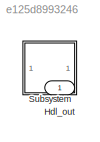
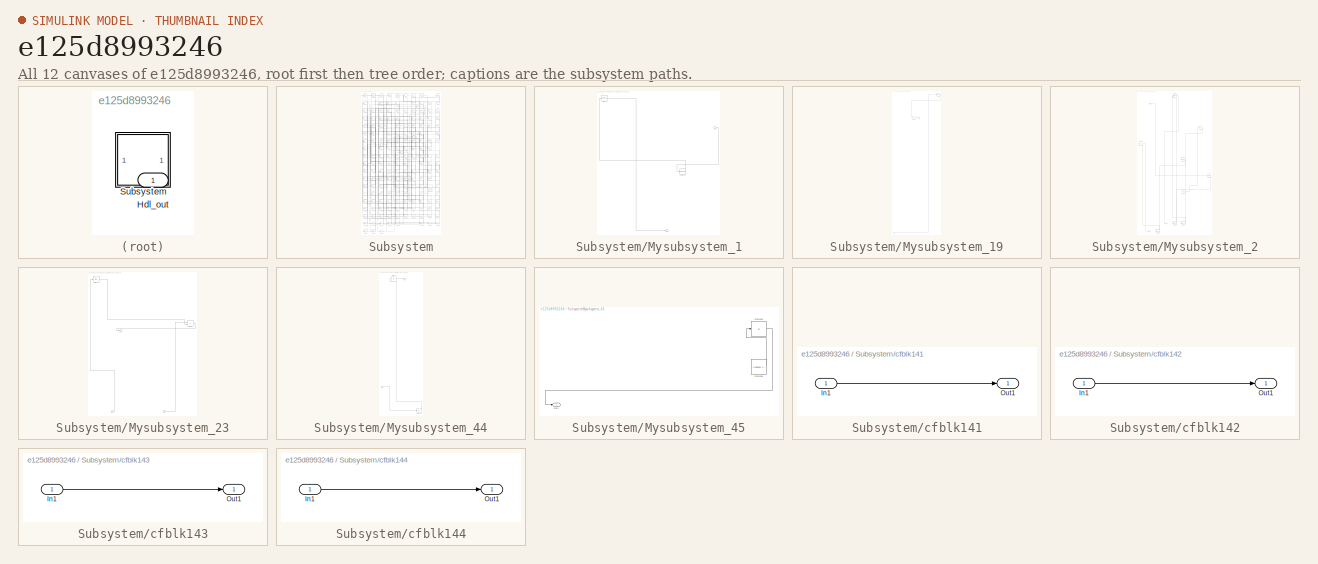
[diagram: thumbnail index - all 12 canvases of the model, root first then tree order]
MODEL slx_e125d8993246
KIND model
CONFIG AbsTol = auto
CONFIG EnableMultiTasking = off
CONFIG FixedStep = auto
CONFIG MaxStep = auto
CONFIG MinStep = auto
CONFIG RelTol = 1e-3
CONFIG SampleTimeConstraint = Unconstrained
CONFIG SolverName = VariableStepAuto
CONFIG StartTime = 0.0
CONFIG StopTime = 10.0
BLOCK [Outport] Hdl_out
  OutDataTypeStr = uint8
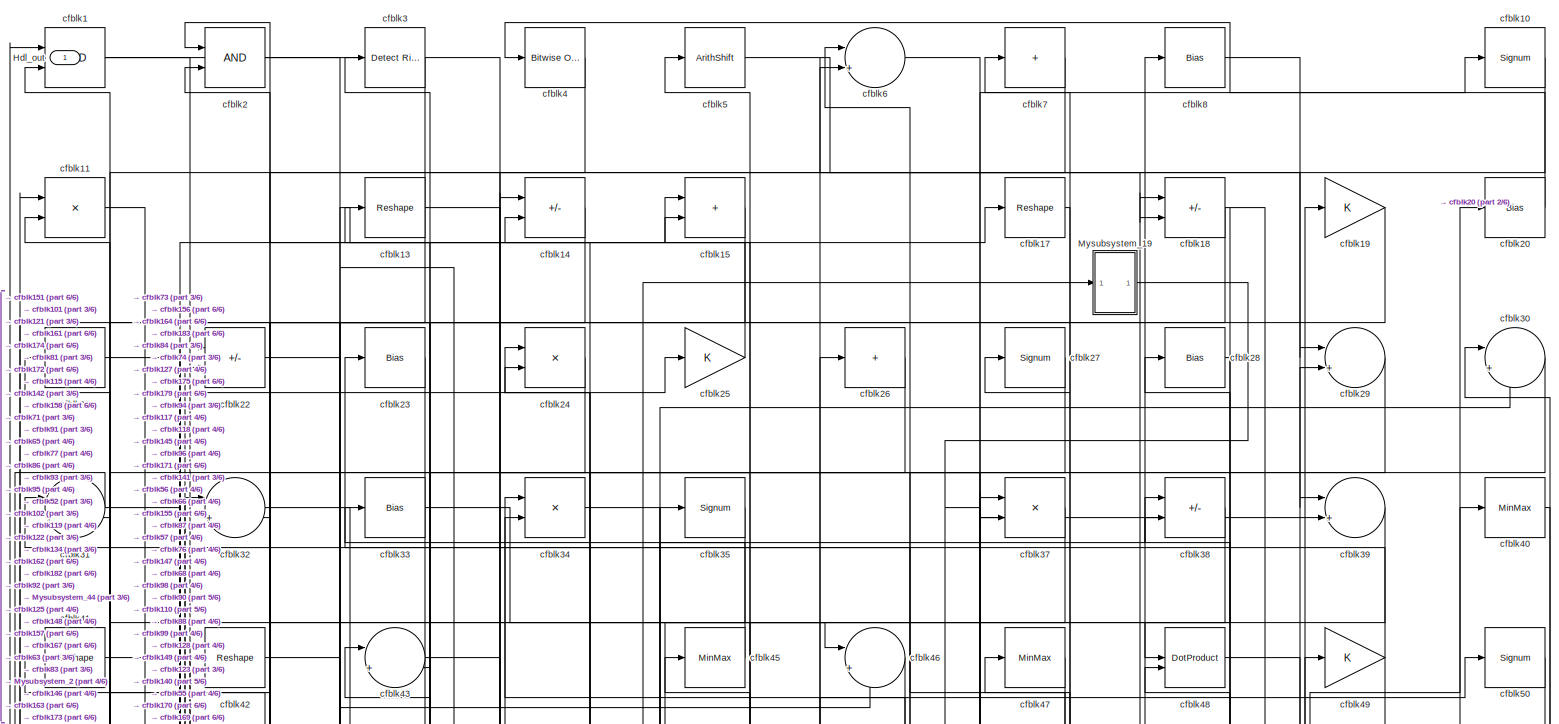
[diagram: Subsystem - part 1/6, full width, top band]
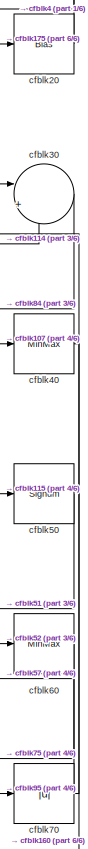
[diagram: Subsystem - part 2/6, top right region]
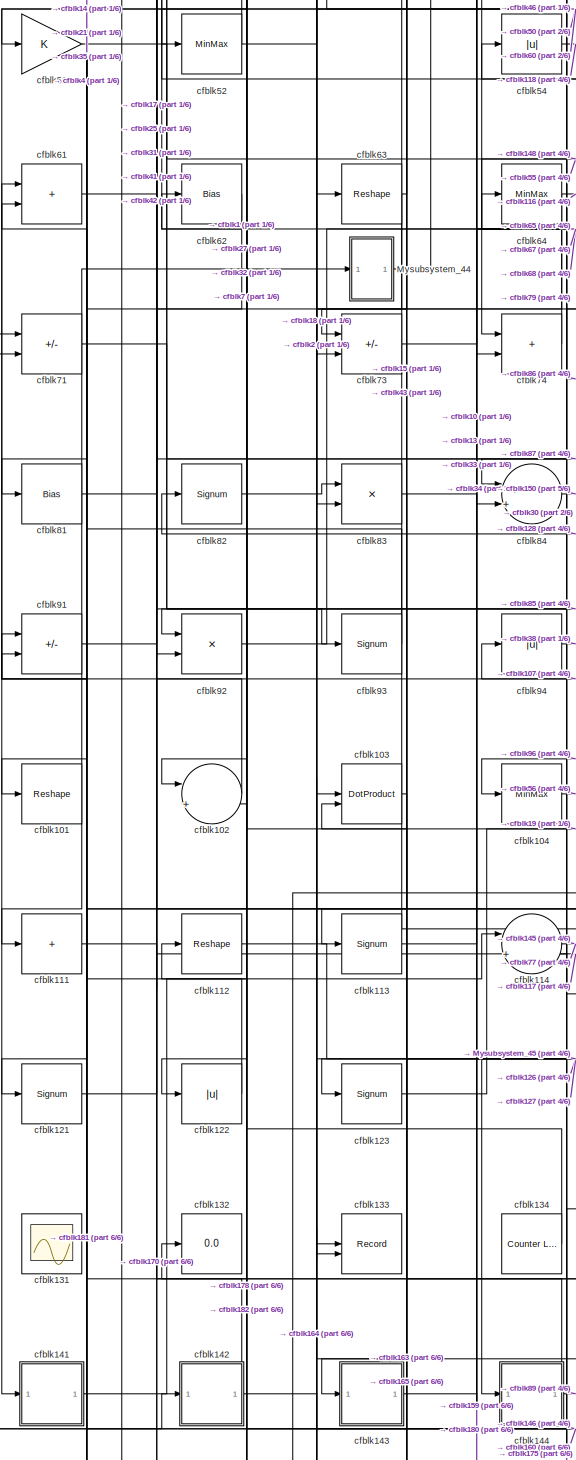
[diagram: Subsystem - part 3/6, middle left region]
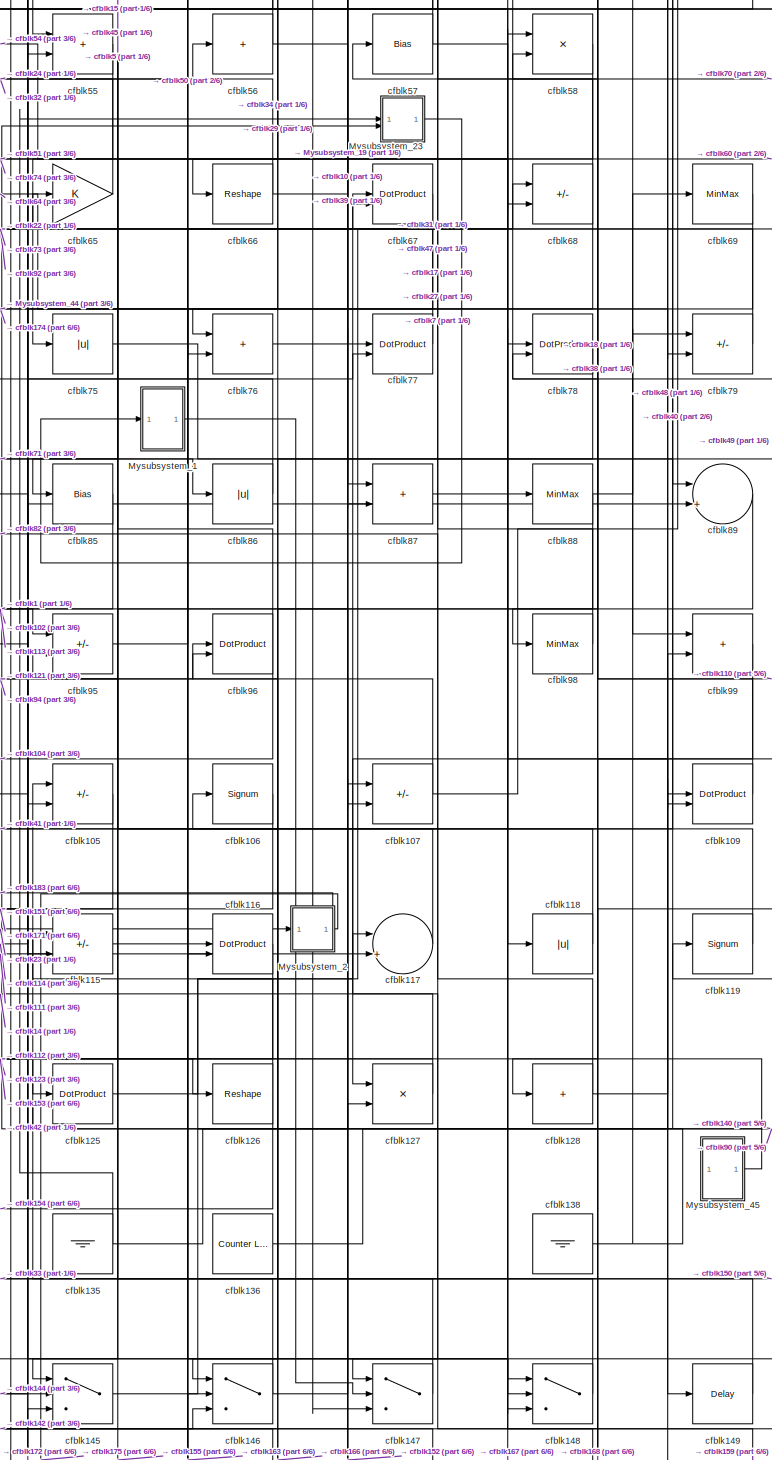
[diagram: Subsystem - part 4/6, central region]
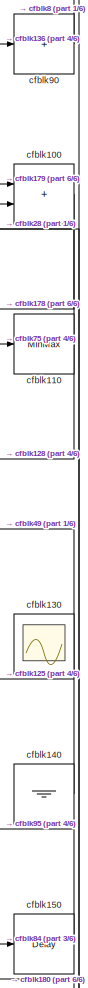
[diagram: Subsystem - part 5/6, middle right region]
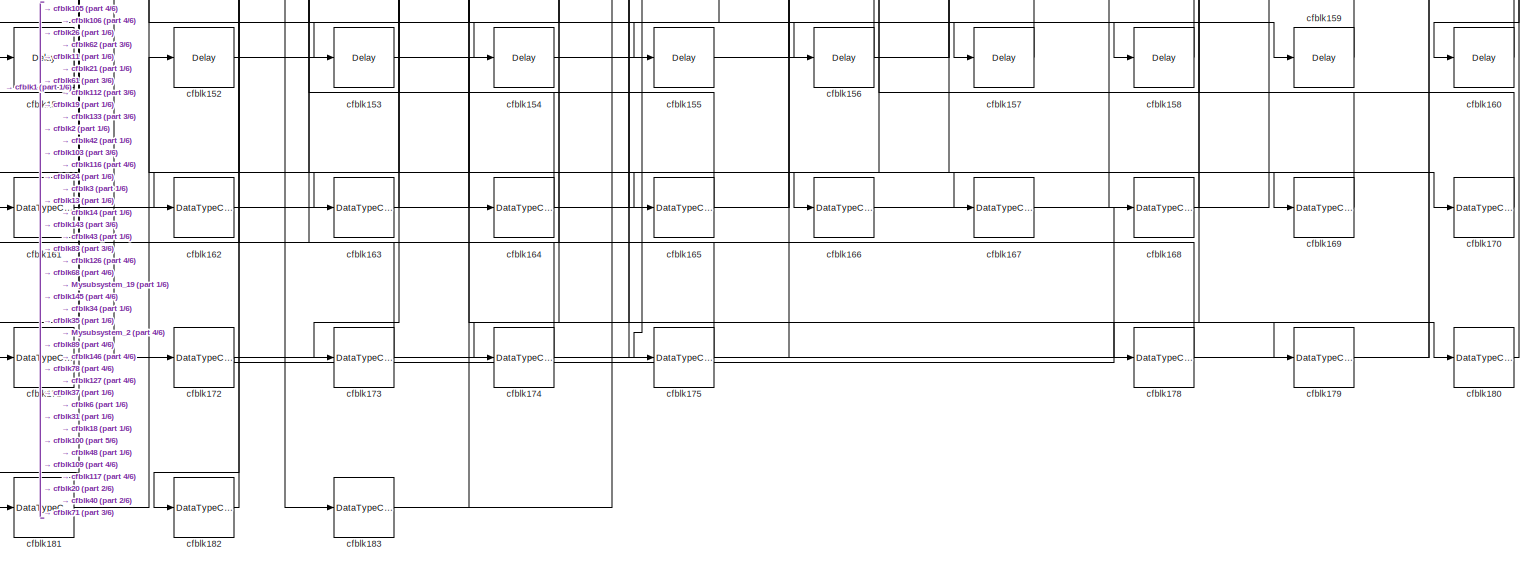
[diagram: Subsystem - part 6/6, full width, bottom band]
BLOCK [SubSystem] Subsystem
BLOCK [Outport] Subsystem/Hdl_out
  OutDataTypeStr = uint8
BLOCK [SubSystem] Subsystem/Mysubsystem_1
  RTWFcnName = Mysubsystem_1
  RTWFcnNameOpts = User specified
  RTWFileNameOpts = Use function name
  RTWSystemCode = Reusable function
  TreatAsAtomicUnit = on
BLOCK [Inport] Subsystem/Mysubsystem_1/In1
BLOCK [Outport] Subsystem/Mysubsystem_1/Out1
BLOCK [Reshape] Subsystem/Mysubsystem_1/cfblk108
BLOCK [Signum] Subsystem/Mysubsystem_1/cfblk53
BLOCK [SubSystem] Subsystem/Mysubsystem_19
  RTWFcnName = Mysubsystem_19
  RTWFcnNameOpts = User specified
  RTWFileNameOpts = Use function name
  RTWSystemCode = Reusable function
  TreatAsAtomicUnit = on
BLOCK [Inport] Subsystem/Mysubsystem_19/In1
BLOCK [Outport] Subsystem/Mysubsystem_19/Out1
BLOCK [Sum] Subsystem/Mysubsystem_19/cfblk36
  IconShape = rectangular
  Inputs = +
BLOCK [Reshape] Subsystem/Mysubsystem_19/cfblk9
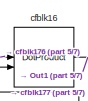
[diagram: Subsystem/Mysubsystem_2 - part 1/7, top center region]
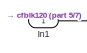
[diagram: Subsystem/Mysubsystem_2 - part 2/7, top left region]
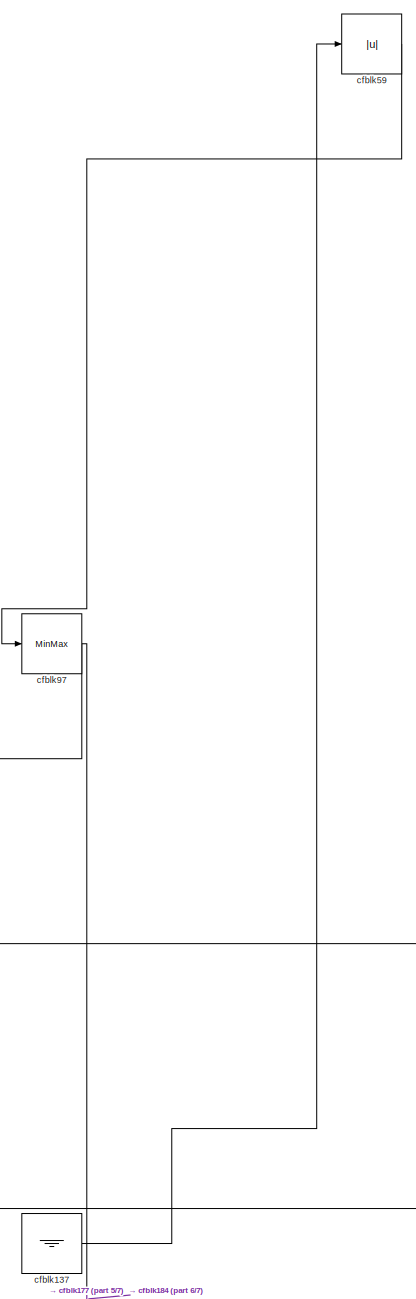
[diagram: Subsystem/Mysubsystem_2 - part 3/7, middle right region]
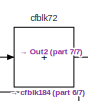
[diagram: Subsystem/Mysubsystem_2 - part 4/7, middle left region]
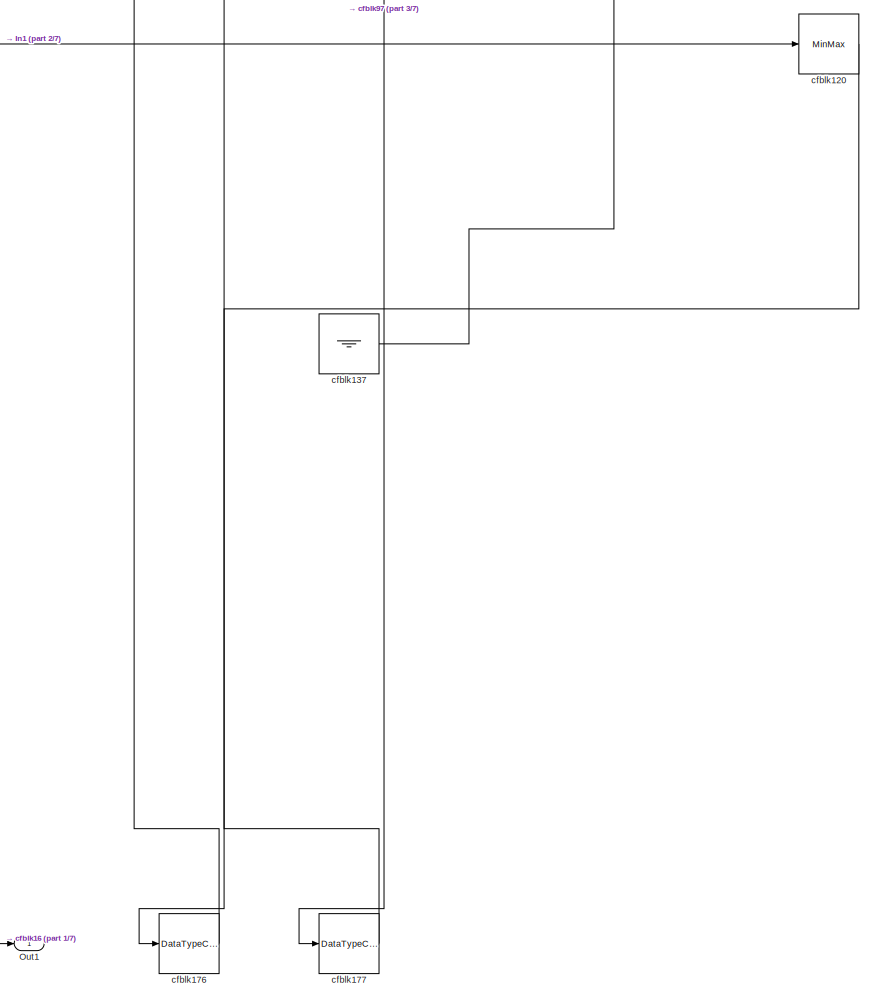
[diagram: Subsystem/Mysubsystem_2 - part 5/7, bottom right region]
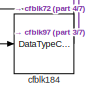
[diagram: Subsystem/Mysubsystem_2 - part 6/7, bottom left region]
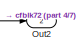
[diagram: Subsystem/Mysubsystem_2 - part 7/7, bottom left region]
BLOCK [SubSystem] Subsystem/Mysubsystem_2
  RTWFcnName = Mysubsystem_2
  RTWFcnNameOpts = User specified
  RTWFileNameOpts = Use function name
  RTWSystemCode = Reusable function
  TreatAsAtomicUnit = on
BLOCK [Inport] Subsystem/Mysubsystem_2/In1
BLOCK [Outport] Subsystem/Mysubsystem_2/Out1
BLOCK [Outport] Subsystem/Mysubsystem_2/Out2
  Port = 2
BLOCK [MinMax] Subsystem/Mysubsystem_2/cfblk120
BLOCK [Ground] Subsystem/Mysubsystem_2/cfblk137
BLOCK [DotProduct] Subsystem/Mysubsystem_2/cfblk16
  OutDataTypeStr = Inherit: Inherit via internal rule
BLOCK [DataTypeConversion] Subsystem/Mysubsystem_2/cfblk176
  OutDataTypeStr = uint8
  RndMeth = Floor
  SaturateOnIntegerOverflow = off
BLOCK [DataTypeConversion] Subsystem/Mysubsystem_2/cfblk177
  OutDataTypeStr = uint8
  RndMeth = Floor
  SaturateOnIntegerOverflow = off
BLOCK [DataTypeConversion] Subsystem/Mysubsystem_2/cfblk184
  OutDataTypeStr = uint8
  RndMeth = Floor
  SaturateOnIntegerOverflow = off
BLOCK [Abs] Subsystem/Mysubsystem_2/cfblk59
  SaturateOnIntegerOverflow = off
BLOCK [Sum] Subsystem/Mysubsystem_2/cfblk72
  IconShape = rectangular
  Inputs = +
BLOCK [MinMax] Subsystem/Mysubsystem_2/cfblk97
BLOCK [SubSystem] Subsystem/Mysubsystem_23
  RTWFcnName = Mysubsystem_23
  RTWFcnNameOpts = User specified
  RTWFileNameOpts = Use function name
  RTWSystemCode = Reusable function
  TreatAsAtomicUnit = on
BLOCK [Inport] Subsystem/Mysubsystem_23/In1
BLOCK [Inport] Subsystem/Mysubsystem_23/In2
  Port = 2
BLOCK [Outport] Subsystem/Mysubsystem_23/Out1
BLOCK [Bias] Subsystem/Mysubsystem_23/cfblk44
  Bias = 0.0
  SaturateOnIntegerOverflow = off
BLOCK [Sum] Subsystem/Mysubsystem_23/cfblk80
  IconShape = rectangular
  Inputs = +-
BLOCK [SubSystem] Subsystem/Mysubsystem_44
  RTWFcnName = Mysubsystem_44
  RTWFcnNameOpts = User specified
  RTWFileNameOpts = Use function name
  RTWSystemCode = Reusable function
  TreatAsAtomicUnit = on
BLOCK [Inport] Subsystem/Mysubsystem_44/In1
BLOCK [Outport] Subsystem/Mysubsystem_44/Out1
BLOCK [Abs] Subsystem/Mysubsystem_44/cfblk12
  SaturateOnIntegerOverflow = off
BLOCK [Abs] Subsystem/Mysubsystem_44/cfblk124
  SaturateOnIntegerOverflow = off
BLOCK [SubSystem] Subsystem/Mysubsystem_45
  RTWFcnName = Mysubsystem_45
  RTWFcnNameOpts = User specified
  RTWFileNameOpts = Use function name
  RTWSystemCode = Reusable function
  TreatAsAtomicUnit = on
BLOCK [Outport] Subsystem/Mysubsystem_45/Out1
BLOCK [Sum] Subsystem/Mysubsystem_45/cfblk129
  IconShape = rectangular
  Inputs = +
BLOCK [Reference] Subsystem/Mysubsystem_45/cfblk139  REF=hdlsllib/Sources/Counter
Limited
  SourceBlock = hdlsllib/Sources/Counter\nLimited
  SourceType = Counter Limited
BLOCK [Logic] Subsystem/cfblk1
  AllPortsSameDT = off
  OutDataTypeStr = boolean
BLOCK [Signum] Subsystem/cfblk10
BLOCK [Sum] Subsystem/cfblk100
  IconShape = rectangular
  OutDataTypeStr = uint8
BLOCK [Reshape] Subsystem/cfblk101
BLOCK [Sum] Subsystem/cfblk102
  Inputs = |++
  OutDataTypeStr = uint8
BLOCK [DotProduct] Subsystem/cfblk103
  OutDataTypeStr = uint8
BLOCK [MinMax] Subsystem/cfblk104
  OutDataTypeStr = uint8
BLOCK [Sum] Subsystem/cfblk105
  IconShape = rectangular
  Inputs = +-
  OutDataTypeStr = uint8
BLOCK [Signum] Subsystem/cfblk106
BLOCK [Sum] Subsystem/cfblk107
  IconShape = rectangular
  Inputs = +-
  OutDataTypeStr = uint8
BLOCK [DotProduct] Subsystem/cfblk109
  OutDataTypeStr = uint8
BLOCK [Product] Subsystem/cfblk11
  Inputs = */
  OutDataTypeStr = uint8
  RndMeth = Zero
  SaturateOnIntegerOverflow = on
BLOCK [MinMax] Subsystem/cfblk110
  OutDataTypeStr = uint8
BLOCK [Sum] Subsystem/cfblk111
  IconShape = rectangular
  Inputs = +
  OutDataTypeStr = uint8
BLOCK [Reshape] Subsystem/cfblk112
BLOCK [Signum] Subsystem/cfblk113
BLOCK [Sum] Subsystem/cfblk114
  Inputs = |++
  OutDataTypeStr = uint8
BLOCK [Sum] Subsystem/cfblk115
  IconShape = rectangular
  Inputs = +-
  OutDataTypeStr = uint8
BLOCK [DotProduct] Subsystem/cfblk116
  OutDataTypeStr = uint8
BLOCK [Sum] Subsystem/cfblk117
  Inputs = |++
  OutDataTypeStr = uint8
BLOCK [Abs] Subsystem/cfblk118
  OutDataTypeStr = uint8
  SaturateOnIntegerOverflow = off
BLOCK [Signum] Subsystem/cfblk119
BLOCK [Signum] Subsystem/cfblk121
BLOCK [Abs] Subsystem/cfblk122
  OutDataTypeStr = uint8
  SaturateOnIntegerOverflow = off
BLOCK [Signum] Subsystem/cfblk123
BLOCK [DotProduct] Subsystem/cfblk125
  OutDataTypeStr = uint8
BLOCK [Reshape] Subsystem/cfblk126
BLOCK [Product] Subsystem/cfblk127
  Inputs = */
  OutDataTypeStr = uint8
  RndMeth = Zero
  SaturateOnIntegerOverflow = on
BLOCK [Sum] Subsystem/cfblk128
  IconShape = rectangular
  Inputs = +
  OutDataTypeStr = uint8
BLOCK [Reshape] Subsystem/cfblk13
BLOCK [Scope] Subsystem/cfblk130
  Floating = on
  NumInputPorts = 1
  ScopeSpecificationString = Simulink.scopes.TimeScopeBlockCfg('CurrentConfiguration', extmgr.ConfigurationSet(extmgr.Configuration('Core','General UI',true,'FigureColor',[0.156862745098039 0.156862745098039 0.156862745098039]),extmgr.Configuration('Core','Source UI',true),extmgr.Configuration('Sources','WiredSimulink',true,'DataLoggingVariableName','ScopeData1','DataLoggingSaveFormat','StructureWithTime','DataLoggingLimitDat...<+2713ch>
BLOCK [Scope] Subsystem/cfblk131
  Floating = on
  NumInputPorts = 1
  ScopeSpecificationString = Simulink.scopes.TimeScopeBlockCfg('CurrentConfiguration', extmgr.ConfigurationSet(extmgr.Configuration('Core','General UI',true,'FigureColor',[0.156862745098039 0.156862745098039 0.156862745098039]),extmgr.Configuration('Core','Source UI',true),extmgr.Configuration('Sources','WiredSimulink',true,'DataLoggingSaveFormat','StructureWithTime','DataLoggingLimitDataPoints',true,'DataLoggingDecimation','...<+2674ch>
BLOCK [Display] Subsystem/cfblk132
  Decimation = 1
BLOCK [Record] Subsystem/cfblk133
  CompatibilityTag = XY
  FileSettingsInternal = {"entries":[{"content":{"excelSettings":{"content":{},"type":"Streamout.ExcelSettings"}},"type":"Streamout.FileSettingStorage","uuid":""}],"packageUris":["http:\/\/schema.mathworks.com\/mf0\/streamout_blocks\/R2020a"],"version":"1.0"}
  Layout = [1 1]
  SignalsInternal = {"entries":[{"content":{"signals":[{"content":{"blockPath":[],"dimensions":[1],"domain":"","lineColor":"#a2142f","plots":[1],"port":1,"signalID":38384,"signalName":"cfblk175"},"type":"RecordBlkView.Signal","uuid":""},{"content":{"blockPath":[],"dimensions":[1],"domain":"","lineColor":"#139fff","plots":[1],"port":2,"signalID":38387,"signalName":"cfblk63"},"type":"RecordBlkView.Signal","uuid":""}]},...<+143ch>
  VisualizationBindings = {"xyplotplugin":{"info":[{"series":[{"bindingParametersList":[{"parameter":"X-Axis","signalID":38384,"signalName":"cfblk175"},{"parameter":"Y-Axis","signalID":38387,"signalName":"cfblk63"}],"seriesID":10141}],"subplotID":1}]}}
  st = -1
BLOCK [Reference] Subsystem/cfblk134  REF=hdlsllib/Sources/Counter
Limited
  SourceBlock = hdlsllib/Sources/Counter\nLimited
  SourceType = Counter Limited
BLOCK [Ground] Subsystem/cfblk135
BLOCK [Reference] Subsystem/cfblk136  REF=hdlsllib/Sources/Counter
Limited
  SourceBlock = hdlsllib/Sources/Counter\nLimited
  SourceType = Counter Limited
BLOCK [Ground] Subsystem/cfblk138
BLOCK [Sum] Subsystem/cfblk14
  IconShape = rectangular
  Inputs = +-
  OutDataTypeStr = uint8
BLOCK [Ground] Subsystem/cfblk140
BLOCK [SubSystem] Subsystem/cfblk141
  LibrarySourceBlock = hdlsllib/Ports &\nSubsystems/Subsystem
BLOCK [Inport] Subsystem/cfblk141/In1
BLOCK [Outport] Subsystem/cfblk141/Out1
BLOCK [SubSystem] Subsystem/cfblk142
  LibrarySourceBlock = hdlsllib/Ports &\nSubsystems/Subsystem
BLOCK [Inport] Subsystem/cfblk142/In1
BLOCK [Outport] Subsystem/cfblk142/Out1
BLOCK [SubSystem] Subsystem/cfblk143
  LibrarySourceBlock = hdlsllib/Ports &\nSubsystems/Subsystem
BLOCK [Inport] Subsystem/cfblk143/In1
BLOCK [Outport] Subsystem/cfblk143/Out1
BLOCK [SubSystem] Subsystem/cfblk144
  LibrarySourceBlock = hdlsllib/Ports &\nSubsystems/Subsystem
BLOCK [Inport] Subsystem/cfblk144/In1
BLOCK [Outport] Subsystem/cfblk144/Out1
BLOCK [Switch] Subsystem/cfblk145
  InputSameDT = off
  OutDataTypeStr = uint8
  SaturateOnIntegerOverflow = off
BLOCK [Switch] Subsystem/cfblk146
  InputSameDT = off
  OutDataTypeStr = uint8
  SaturateOnIntegerOverflow = off
BLOCK [Switch] Subsystem/cfblk147
  InputSameDT = off
  OutDataTypeStr = uint8
  SaturateOnIntegerOverflow = off
BLOCK [Switch] Subsystem/cfblk148
  InputSameDT = off
  OutDataTypeStr = uint8
  SaturateOnIntegerOverflow = off
BLOCK [Delay] Subsystem/cfblk149
  InputPortMap = u0
  SampleTime = 1
BLOCK [Sum] Subsystem/cfblk15
  IconShape = rectangular
  OutDataTypeStr = uint8
BLOCK [Delay] Subsystem/cfblk150
  InputPortMap = u0
  SampleTime = 1
BLOCK [Delay] Subsystem/cfblk151
  InputPortMap = u0
  SampleTime = 1
BLOCK [Delay] Subsystem/cfblk152
  InputPortMap = u0
  SampleTime = 1
BLOCK [Delay] Subsystem/cfblk153
  InputPortMap = u0
  SampleTime = 1
BLOCK [Delay] Subsystem/cfblk154
  InputPortMap = u0
  SampleTime = 1
BLOCK [Delay] Subsystem/cfblk155
  InputPortMap = u0
  SampleTime = 1
BLOCK [Delay] Subsystem/cfblk156
  InputPortMap = u0
  SampleTime = 1
BLOCK [Delay] Subsystem/cfblk157
  InputPortMap = u0
  SampleTime = 1
BLOCK [Delay] Subsystem/cfblk158
  InputPortMap = u0
  SampleTime = 1
BLOCK [Delay] Subsystem/cfblk159
  InputPortMap = u0
  SampleTime = 1
BLOCK [Delay] Subsystem/cfblk160
  InputPortMap = u0
  SampleTime = 1
BLOCK [DataTypeConversion] Subsystem/cfblk161
  OutDataTypeStr = uint8
  RndMeth = Floor
  SaturateOnIntegerOverflow = off
BLOCK [DataTypeConversion] Subsystem/cfblk162
  OutDataTypeStr = uint8
  RndMeth = Floor
  SaturateOnIntegerOverflow = off
BLOCK [DataTypeConversion] Subsystem/cfblk163
  OutDataTypeStr = uint8
  RndMeth = Floor
  SaturateOnIntegerOverflow = off
BLOCK [DataTypeConversion] Subsystem/cfblk164
  OutDataTypeStr = uint8
  RndMeth = Floor
  SaturateOnIntegerOverflow = off
BLOCK [DataTypeConversion] Subsystem/cfblk165
  OutDataTypeStr = uint8
  RndMeth = Floor
  SaturateOnIntegerOverflow = off
BLOCK [DataTypeConversion] Subsystem/cfblk166
  OutDataTypeStr = uint8
  RndMeth = Floor
  SaturateOnIntegerOverflow = off
BLOCK [DataTypeConversion] Subsystem/cfblk167
  OutDataTypeStr = uint8
  RndMeth = Floor
  SaturateOnIntegerOverflow = off
BLOCK [DataTypeConversion] Subsystem/cfblk168
  OutDataTypeStr = uint8
  RndMeth = Floor
  SaturateOnIntegerOverflow = off
BLOCK [DataTypeConversion] Subsystem/cfblk169
  OutDataTypeStr = uint8
  RndMeth = Floor
  SaturateOnIntegerOverflow = off
BLOCK [Reshape] Subsystem/cfblk17
BLOCK [DataTypeConversion] Subsystem/cfblk170
  OutDataTypeStr = uint8
  RndMeth = Floor
  SaturateOnIntegerOverflow = off
BLOCK [DataTypeConversion] Subsystem/cfblk171
  OutDataTypeStr = uint8
  RndMeth = Floor
  SaturateOnIntegerOverflow = off
BLOCK [DataTypeConversion] Subsystem/cfblk172
  OutDataTypeStr = uint8
  RndMeth = Floor
  SaturateOnIntegerOverflow = off
BLOCK [DataTypeConversion] Subsystem/cfblk173
  OutDataTypeStr = uint8
  RndMeth = Floor
  SaturateOnIntegerOverflow = off
BLOCK [DataTypeConversion] Subsystem/cfblk174
  OutDataTypeStr = uint8
  RndMeth = Floor
  SaturateOnIntegerOverflow = off
BLOCK [DataTypeConversion] Subsystem/cfblk175
  OutDataTypeStr = uint8
  RndMeth = Floor
  SaturateOnIntegerOverflow = off
BLOCK [DataTypeConversion] Subsystem/cfblk178
  OutDataTypeStr = uint8
  RndMeth = Floor
  SaturateOnIntegerOverflow = off
BLOCK [DataTypeConversion] Subsystem/cfblk179
  OutDataTypeStr = uint8
  RndMeth = Floor
  SaturateOnIntegerOverflow = off
BLOCK [Sum] Subsystem/cfblk18
  IconShape = rectangular
  Inputs = +-
  OutDataTypeStr = uint8
BLOCK [DataTypeConversion] Subsystem/cfblk180
  OutDataTypeStr = uint8
  RndMeth = Floor
  SaturateOnIntegerOverflow = off
BLOCK [DataTypeConversion] Subsystem/cfblk181
  OutDataTypeStr = uint8
  RndMeth = Floor
  SaturateOnIntegerOverflow = off
BLOCK [DataTypeConversion] Subsystem/cfblk182
  OutDataTypeStr = uint8
  RndMeth = Floor
  SaturateOnIntegerOverflow = off
BLOCK [DataTypeConversion] Subsystem/cfblk183
  OutDataTypeStr = uint8
  RndMeth = Floor
  SaturateOnIntegerOverflow = off
BLOCK [Gain] Subsystem/cfblk19
  OutDataTypeStr = uint8
BLOCK [Logic] Subsystem/cfblk2
  AllPortsSameDT = off
  OutDataTypeStr = boolean
BLOCK [Bias] Subsystem/cfblk20
  Bias = 0.0
  SaturateOnIntegerOverflow = off
BLOCK [Sum] Subsystem/cfblk21
  IconShape = rectangular
  Inputs = +
  OutDataTypeStr = uint8
BLOCK [Sum] Subsystem/cfblk22
  IconShape = rectangular
  Inputs = +-
  OutDataTypeStr = uint8
BLOCK [Bias] Subsystem/cfblk23
  Bias = 0.0
  SaturateOnIntegerOverflow = off
BLOCK [Product] Subsystem/cfblk24
  Inputs = */
  OutDataTypeStr = uint8
  RndMeth = Zero
  SaturateOnIntegerOverflow = on
BLOCK [Gain] Subsystem/cfblk25
  OutDataTypeStr = uint8
BLOCK [Sum] Subsystem/cfblk26
  IconShape = rectangular
  Inputs = +
  OutDataTypeStr = uint8
BLOCK [Signum] Subsystem/cfblk27
BLOCK [Bias] Subsystem/cfblk28
  Bias = 0.0
  SaturateOnIntegerOverflow = off
BLOCK [Sum] Subsystem/cfblk29
  Inputs = |++
  OutDataTypeStr = uint8
BLOCK [Reference] Subsystem/cfblk3  REF=hdlsllib/Logic and Bit
Operations/Detect Rise
Positive
  SourceBlock = hdlsllib/Logic and Bit\nOperations/Detect Rise\nPositive
  SourceType = Detect Rise Positive
BLOCK [Sum] Subsystem/cfblk30
  Inputs = |++
  OutDataTypeStr = uint8
BLOCK [Sum] Subsystem/cfblk31
  Inputs = |++
  OutDataTypeStr = uint8
BLOCK [Sum] Subsystem/cfblk32
  Inputs = |++
  OutDataTypeStr = uint8
BLOCK [Bias] Subsystem/cfblk33
  Bias = 0.0
  SaturateOnIntegerOverflow = off
BLOCK [Product] Subsystem/cfblk34
  Inputs = */
  OutDataTypeStr = uint8
  RndMeth = Zero
  SaturateOnIntegerOverflow = on
BLOCK [Signum] Subsystem/cfblk35
BLOCK [Product] Subsystem/cfblk37
  Inputs = */
  OutDataTypeStr = uint8
  RndMeth = Zero
  SaturateOnIntegerOverflow = on
BLOCK [Sum] Subsystem/cfblk38
  IconShape = rectangular
  Inputs = +-
  OutDataTypeStr = uint8
BLOCK [Sum] Subsystem/cfblk39
  Inputs = |++
  OutDataTypeStr = uint8
BLOCK [Reference] Subsystem/cfblk4  REF=simulink/Logic and Bit
Operations/Bitwise
Operator
  LibrarySourceBlock = hdlsllib/Logic and Bit\nOperations/Bitwise\nOperator
  SourceBlock = simulink/Logic and Bit\nOperations/Bitwise\nOperator
  SourceType = Bitwise Operator
BLOCK [MinMax] Subsystem/cfblk40
  OutDataTypeStr = uint8
BLOCK [Reshape] Subsystem/cfblk41
BLOCK [Reshape] Subsystem/cfblk42
BLOCK [Sum] Subsystem/cfblk43
  Inputs = |++
  OutDataTypeStr = uint8
BLOCK [MinMax] Subsystem/cfblk45
  OutDataTypeStr = uint8
BLOCK [Sum] Subsystem/cfblk46
  Inputs = |++
  OutDataTypeStr = uint8
BLOCK [MinMax] Subsystem/cfblk47
  OutDataTypeStr = uint8
BLOCK [DotProduct] Subsystem/cfblk48
  OutDataTypeStr = uint8
BLOCK [Gain] Subsystem/cfblk49
  OutDataTypeStr = uint8
BLOCK [ArithShift] Subsystem/cfblk5
  BitShiftNumber = 8
  InputPortMap = u0
BLOCK [Signum] Subsystem/cfblk50
BLOCK [Gain] Subsystem/cfblk51
  OutDataTypeStr = uint8
BLOCK [MinMax] Subsystem/cfblk52
  OutDataTypeStr = uint8
BLOCK [Abs] Subsystem/cfblk54
  OutDataTypeStr = uint8
  SaturateOnIntegerOverflow = off
BLOCK [Sum] Subsystem/cfblk55
  IconShape = rectangular
  OutDataTypeStr = uint8
BLOCK [Sum] Subsystem/cfblk56
  IconShape = rectangular
  Inputs = +
  OutDataTypeStr = uint8
BLOCK [Bias] Subsystem/cfblk57
  Bias = 0.0
  SaturateOnIntegerOverflow = off
BLOCK [Product] Subsystem/cfblk58
  Inputs = */
  OutDataTypeStr = uint8
  RndMeth = Zero
  SaturateOnIntegerOverflow = on
BLOCK [Sum] Subsystem/cfblk6
  Inputs = |++
  OutDataTypeStr = uint8
BLOCK [MinMax] Subsystem/cfblk60
  OutDataTypeStr = uint8
BLOCK [Sum] Subsystem/cfblk61
  IconShape = rectangular
  OutDataTypeStr = uint8
BLOCK [Bias] Subsystem/cfblk62
  Bias = 0.0
  SaturateOnIntegerOverflow = off
BLOCK [Reshape] Subsystem/cfblk63
BLOCK [MinMax] Subsystem/cfblk64
  OutDataTypeStr = uint8
BLOCK [Gain] Subsystem/cfblk65
  OutDataTypeStr = uint8
BLOCK [Reshape] Subsystem/cfblk66
BLOCK [DotProduct] Subsystem/cfblk67
  OutDataTypeStr = uint8
BLOCK [Sum] Subsystem/cfblk68
  IconShape = rectangular
  Inputs = +-
  OutDataTypeStr = uint8
BLOCK [MinMax] Subsystem/cfblk69
  OutDataTypeStr = uint8
BLOCK [Sum] Subsystem/cfblk7
  IconShape = rectangular
  Inputs = +
  OutDataTypeStr = uint8
BLOCK [Abs] Subsystem/cfblk70
  OutDataTypeStr = uint8
  SaturateOnIntegerOverflow = off
BLOCK [Sum] Subsystem/cfblk71
  IconShape = rectangular
  Inputs = +-
  OutDataTypeStr = uint8
BLOCK [Sum] Subsystem/cfblk73
  IconShape = rectangular
  Inputs = +-
  OutDataTypeStr = uint8
BLOCK [Sum] Subsystem/cfblk74
  IconShape = rectangular
  OutDataTypeStr = uint8
BLOCK [Abs] Subsystem/cfblk75
  OutDataTypeStr = uint8
  SaturateOnIntegerOverflow = off
BLOCK [Sum] Subsystem/cfblk76
  IconShape = rectangular
  OutDataTypeStr = uint8
BLOCK [DotProduct] Subsystem/cfblk77
  OutDataTypeStr = uint8
BLOCK [DotProduct] Subsystem/cfblk78
  OutDataTypeStr = uint8
BLOCK [Sum] Subsystem/cfblk79
  IconShape = rectangular
  Inputs = +-
  OutDataTypeStr = uint8
BLOCK [Bias] Subsystem/cfblk8
  Bias = 0.0
  SaturateOnIntegerOverflow = off
BLOCK [Bias] Subsystem/cfblk81
  Bias = 0.0
  SaturateOnIntegerOverflow = off
BLOCK [Signum] Subsystem/cfblk82
BLOCK [Product] Subsystem/cfblk83
  Inputs = */
  OutDataTypeStr = uint8
  RndMeth = Zero
  SaturateOnIntegerOverflow = on
BLOCK [Sum] Subsystem/cfblk84
  Inputs = |++
  OutDataTypeStr = uint8
BLOCK [Bias] Subsystem/cfblk85
  Bias = 0.0
  SaturateOnIntegerOverflow = off
BLOCK [Abs] Subsystem/cfblk86
  OutDataTypeStr = uint8
  SaturateOnIntegerOverflow = off
BLOCK [Sum] Subsystem/cfblk87
  IconShape = rectangular
  OutDataTypeStr = uint8
BLOCK [MinMax] Subsystem/cfblk88
  OutDataTypeStr = uint8
BLOCK [Sum] Subsystem/cfblk89
  Inputs = |++
  OutDataTypeStr = uint8
BLOCK [Sum] Subsystem/cfblk90
  IconShape = rectangular
  Inputs = +
  OutDataTypeStr = uint8
BLOCK [Sum] Subsystem/cfblk91
  IconShape = rectangular
  Inputs = +-
  OutDataTypeStr = uint8
BLOCK [Product] Subsystem/cfblk92
  Inputs = */
  OutDataTypeStr = uint8
  RndMeth = Zero
  SaturateOnIntegerOverflow = on
BLOCK [Signum] Subsystem/cfblk93
BLOCK [Abs] Subsystem/cfblk94
  OutDataTypeStr = uint8
  SaturateOnIntegerOverflow = off
BLOCK [Sum] Subsystem/cfblk95
  IconShape = rectangular
  Inputs = +-
  OutDataTypeStr = uint8
BLOCK [DotProduct] Subsystem/cfblk96
  OutDataTypeStr = uint8
BLOCK [MinMax] Subsystem/cfblk98
  OutDataTypeStr = uint8
BLOCK [Sum] Subsystem/cfblk99
  IconShape = rectangular
  OutDataTypeStr = uint8
LINE Subsystem/Mysubsystem_1/In1:1 -> Subsystem/Mysubsystem_1/cfblk108:1
LINE Subsystem/Mysubsystem_1/cfblk108:1 -> Subsystem/Mysubsystem_1/cfblk53:1
LINE Subsystem/Mysubsystem_1/cfblk53:1 -> Subsystem/Mysubsystem_1/Out1:1
LINE Subsystem/Mysubsystem_19/In1:1 -> Subsystem/Mysubsystem_19/cfblk9:1
LINE Subsystem/Mysubsystem_19/cfblk36:1 -> Subsystem/Mysubsystem_19/Out1:1
LINE Subsystem/Mysubsystem_19/cfblk9:1 -> Subsystem/Mysubsystem_19/cfblk36:1
NET Subsystem/Mysubsystem_19:1 -> Subsystem/cfblk147:3, Subsystem/cfblk87:1
LINE Subsystem/Mysubsystem_1:1 -> Subsystem/cfblk147:2
LINE Subsystem/Mysubsystem_2/In1:1 -> Subsystem/Mysubsystem_2/cfblk120:1
LINE Subsystem/Mysubsystem_2/cfblk120:1 -> Subsystem/Mysubsystem_2/cfblk176:1
LINE Subsystem/Mysubsystem_2/cfblk137:1 -> Subsystem/Mysubsystem_2/cfblk59:1
LINE Subsystem/Mysubsystem_2/cfblk16:1 -> Subsystem/Mysubsystem_2/Out1:1
LINE Subsystem/Mysubsystem_2/cfblk176:1 -> Subsystem/Mysubsystem_2/cfblk16:1
LINE Subsystem/Mysubsystem_2/cfblk177:1 -> Subsystem/Mysubsystem_2/cfblk16:2
LINE Subsystem/Mysubsystem_2/cfblk184:1 -> Subsystem/Mysubsystem_2/cfblk72:1
LINE Subsystem/Mysubsystem_2/cfblk59:1 -> Subsystem/Mysubsystem_2/cfblk97:1
LINE Subsystem/Mysubsystem_2/cfblk72:1 -> Subsystem/Mysubsystem_2/Out2:1
NET Subsystem/Mysubsystem_2/cfblk97:1 -> Subsystem/Mysubsystem_2/cfblk177:1, Subsystem/Mysubsystem_2/cfblk184:1
LINE Subsystem/Mysubsystem_23/In1:1 -> Subsystem/Mysubsystem_23/cfblk44:1
LINE Subsystem/Mysubsystem_23/In2:1 -> Subsystem/Mysubsystem_23/cfblk80:1
LINE Subsystem/Mysubsystem_23/cfblk44:1 -> Subsystem/Mysubsystem_23/cfblk80:2
LINE Subsystem/Mysubsystem_23/cfblk80:1 -> Subsystem/Mysubsystem_23/Out1:1
LINE Subsystem/Mysubsystem_23:1 -> Subsystem/Mysubsystem_1:1
LINE Subsystem/Mysubsystem_2:1 -> Subsystem/cfblk175:1
LINE Subsystem/Mysubsystem_2:2 -> Subsystem/cfblk183:1
LINE Subsystem/Mysubsystem_44/In1:1 -> Subsystem/Mysubsystem_44/cfblk124:1
LINE Subsystem/Mysubsystem_44/cfblk124:1 -> Subsystem/Mysubsystem_44/cfblk12:1
LINE Subsystem/Mysubsystem_44/cfblk12:1 -> Subsystem/Mysubsystem_44/Out1:1
NET Subsystem/Mysubsystem_44:1 -> Subsystem/cfblk15:2, Subsystem/cfblk79:2
LINE Subsystem/Mysubsystem_45/cfblk129:1 -> Subsystem/Mysubsystem_45/Out1:1
LINE Subsystem/Mysubsystem_45/cfblk139:1 -> Subsystem/Mysubsystem_45/cfblk129:1
LINE Subsystem/Mysubsystem_45:1 -> Subsystem/cfblk144:1
LINE Subsystem/cfblk100:1 -> Subsystem/cfblk178:1
NET Subsystem/cfblk101:1 -> Subsystem/Mysubsystem_44:1, Subsystem/cfblk111:1
LINE Subsystem/cfblk102:1 -> Subsystem/cfblk61:1
LINE Subsystem/cfblk103:1 -> Subsystem/cfblk163:1
LINE Subsystem/cfblk104:1 -> Subsystem/cfblk56:1
LINE Subsystem/cfblk105:1 -> Subsystem/cfblk151:1
LINE Subsystem/cfblk106:1 -> Subsystem/cfblk171:1
NET Subsystem/cfblk107:1 -> Subsystem/cfblk40:1, Subsystem/cfblk94:1
LINE Subsystem/cfblk109:1 -> Subsystem/cfblk58:2
LINE Subsystem/cfblk10:1 -> Subsystem/cfblk74:2
NET Subsystem/cfblk110:1 -> Subsystem/cfblk128:1, Subsystem/cfblk28:1
LINE Subsystem/cfblk111:1 -> Subsystem/cfblk117:2
LINE Subsystem/cfblk112:1 -> Subsystem/cfblk126:1
LINE Subsystem/cfblk113:1 -> Subsystem/cfblk67:2
NET Subsystem/cfblk114:1 -> Subsystem/cfblk145:2, Subsystem/cfblk30:2, Subsystem/cfblk77:2
NET Subsystem/cfblk115:1 -> Subsystem/cfblk148:3, Subsystem/cfblk50:1
LINE Subsystem/cfblk116:1 -> Subsystem/cfblk153:1
LINE Subsystem/cfblk117:1 -> Subsystem/cfblk5:1
LINE Subsystem/cfblk118:1 -> Subsystem/cfblk15:1
NET Subsystem/cfblk119:1 -> Subsystem/cfblk41:1, Subsystem/cfblk96:2
LINE Subsystem/cfblk11:1 -> Subsystem/cfblk172:1
LINE Subsystem/cfblk121:1 -> Subsystem/cfblk96:1
NET Subsystem/cfblk122:1 -> Subsystem/cfblk21:1, Subsystem/cfblk91:2
LINE Subsystem/cfblk123:1 -> Subsystem/cfblk19:1
LINE Subsystem/cfblk125:1 -> Subsystem/cfblk67:1
NET Subsystem/cfblk126:1 -> Subsystem/cfblk115:1, Subsystem/cfblk154:1
NET Subsystem/cfblk127:1 -> Subsystem/cfblk123:1, Subsystem/cfblk14:2
NET Subsystem/cfblk128:1 -> Subsystem/cfblk29:2, Subsystem/cfblk82:1
LINE Subsystem/cfblk134:1 -> Subsystem/cfblk32:2
NET Subsystem/cfblk135:1 -> Subsystem/Mysubsystem_23:1, Subsystem/cfblk107:1
NET Subsystem/cfblk136:1 -> Subsystem/cfblk119:1, Subsystem/cfblk90:1
NET Subsystem/cfblk138:1 -> Subsystem/Mysubsystem_23:2, Subsystem/cfblk69:1
NET Subsystem/cfblk13:1 -> Subsystem/Hdl_out:1, Subsystem/cfblk102:2, Subsystem/cfblk156:1
NET Subsystem/cfblk140:1 -> Subsystem/cfblk125:2, Subsystem/cfblk49:1
LINE Subsystem/cfblk141/In1:1 -> Subsystem/cfblk141/Out1:1
LINE Subsystem/cfblk141:1 -> Subsystem/cfblk114:1
LINE Subsystem/cfblk142/In1:1 -> Subsystem/cfblk142/Out1:1
NET Subsystem/cfblk142:1 -> Subsystem/cfblk132:1, Subsystem/cfblk146:3
LINE Subsystem/cfblk143/In1:1 -> Subsystem/cfblk143/Out1:1
LINE Subsystem/cfblk143:1 -> Subsystem/cfblk159:1
LINE Subsystem/cfblk144/In1:1 -> Subsystem/cfblk144/Out1:1
NET Subsystem/cfblk144:1 -> Subsystem/cfblk114:2, Subsystem/cfblk89:2, Subsystem/cfblk91:1
NET Subsystem/cfblk145:1 -> Subsystem/cfblk58:1, Subsystem/cfblk99:2
NET Subsystem/cfblk146:1 -> Subsystem/cfblk33:1, Subsystem/cfblk77:1
LINE Subsystem/cfblk147:1 -> Subsystem/cfblk105:1
LINE Subsystem/cfblk148:1 -> Subsystem/cfblk106:1
LINE Subsystem/cfblk149:1 -> Subsystem/cfblk22:1
NET Subsystem/cfblk14:1 -> Subsystem/cfblk43:2, Subsystem/cfblk81:1
LINE Subsystem/cfblk150:1 -> Subsystem/cfblk95:2
LINE Subsystem/cfblk151:1 -> Subsystem/cfblk1:1
LINE Subsystem/cfblk152:1 -> Subsystem/cfblk127:2
LINE Subsystem/cfblk153:1 -> Subsystem/cfblk165:1
LINE Subsystem/cfblk154:1 -> Subsystem/cfblk146:2
LINE Subsystem/cfblk155:1 -> Subsystem/cfblk37:1
LINE Subsystem/cfblk156:1 -> Subsystem/cfblk2:2
LINE Subsystem/cfblk157:1 -> Subsystem/cfblk31:2
LINE Subsystem/cfblk158:1 -> Subsystem/cfblk18:1
LINE Subsystem/cfblk159:1 -> Subsystem/cfblk117:1
NET Subsystem/cfblk15:1 -> Subsystem/cfblk52:1, Subsystem/cfblk71:2, Subsystem/cfblk73:1, Subsystem/cfblk73:2
LINE Subsystem/cfblk160:1 -> Subsystem/cfblk71:1
LINE Subsystem/cfblk161:1 -> Subsystem/cfblk35:1
LINE Subsystem/cfblk162:1 -> Subsystem/cfblk26:1
NET Subsystem/cfblk163:1 -> Subsystem/cfblk116:1, Subsystem/cfblk3:1
LINE Subsystem/cfblk164:1 -> Subsystem/cfblk103:1
LINE Subsystem/cfblk165:1 -> Subsystem/cfblk103:2
LINE Subsystem/cfblk166:1 -> Subsystem/cfblk109:1
LINE Subsystem/cfblk167:1 -> Subsystem/cfblk78:1
LINE Subsystem/cfblk168:1 -> Subsystem/cfblk78:2
LINE Subsystem/cfblk169:1 -> Subsystem/cfblk48:2
LINE Subsystem/cfblk170:1 -> Subsystem/cfblk6:1
LINE Subsystem/cfblk171:1 -> Subsystem/cfblk6:2
NET Subsystem/cfblk172:1 -> Subsystem/cfblk145:3, Subsystem/cfblk168:1
LINE Subsystem/cfblk173:1 -> Subsystem/cfblk11:1
LINE Subsystem/cfblk174:1 -> Subsystem/cfblk11:2
NET Subsystem/cfblk175:1 -> Subsystem/cfblk133:1, Subsystem/cfblk20:1, Subsystem/cfblk24:2
LINE Subsystem/cfblk178:1 -> Subsystem/cfblk112:1
LINE Subsystem/cfblk179:1 -> Subsystem/cfblk100:1
LINE Subsystem/cfblk17:1 -> Subsystem/cfblk147:1
LINE Subsystem/cfblk180:1 -> Subsystem/cfblk100:2
LINE Subsystem/cfblk181:1 -> Subsystem/cfblk152:1
LINE Subsystem/cfblk182:1 -> Subsystem/cfblk62:1
NET Subsystem/cfblk183:1 -> Subsystem/Mysubsystem_19:1, Subsystem/cfblk14:1
NET Subsystem/cfblk18:1 -> Subsystem/cfblk83:2, Subsystem/cfblk98:1, Subsystem/cfblk99:1
LINE Subsystem/cfblk19:1 -> Subsystem/cfblk182:1
LINE Subsystem/cfblk1:1 -> Subsystem/cfblk95:1
LINE Subsystem/cfblk20:1 -> Subsystem/cfblk4:1
LINE Subsystem/cfblk21:1 -> Subsystem/cfblk158:1
LINE Subsystem/cfblk22:1 -> Subsystem/cfblk148:2
LINE Subsystem/cfblk23:1 -> Subsystem/Mysubsystem_2:1
LINE Subsystem/cfblk24:1 -> Subsystem/cfblk173:1
LINE Subsystem/cfblk25:1 -> Subsystem/cfblk2:1
LINE Subsystem/cfblk26:1 -> Subsystem/cfblk161:1
LINE Subsystem/cfblk27:1 -> Subsystem/cfblk92:1
LINE Subsystem/cfblk28:1 -> Subsystem/cfblk48:1
LINE Subsystem/cfblk29:1 -> Subsystem/cfblk66:1
NET Subsystem/cfblk2:1 -> Subsystem/cfblk157:1, Subsystem/cfblk63:1
LINE Subsystem/cfblk30:1 -> Subsystem/cfblk84:1
NET Subsystem/cfblk31:1 -> Subsystem/cfblk115:2, Subsystem/cfblk142:1
LINE Subsystem/cfblk32:1 -> Subsystem/cfblk68:2
NET Subsystem/cfblk33:1 -> Subsystem/cfblk46:1, Subsystem/cfblk84:2
LINE Subsystem/cfblk34:1 -> Subsystem/cfblk179:1
LINE Subsystem/cfblk35:1 -> Subsystem/cfblk121:1
LINE Subsystem/cfblk37:1 -> Subsystem/cfblk162:1
LINE Subsystem/cfblk38:1 -> Subsystem/cfblk145:1
LINE Subsystem/cfblk39:1 -> Subsystem/cfblk55:1
LINE Subsystem/cfblk3:1 -> Subsystem/cfblk37:2
LINE Subsystem/cfblk40:1 -> Subsystem/cfblk160:1
NET Subsystem/cfblk41:1 -> Subsystem/cfblk86:1, Subsystem/cfblk93:1
NET Subsystem/cfblk42:1 -> Subsystem/cfblk125:1, Subsystem/cfblk167:1, Subsystem/cfblk46:2
LINE Subsystem/cfblk43:1 -> Subsystem/cfblk164:1
LINE Subsystem/cfblk45:1 -> Subsystem/cfblk13:1
LINE Subsystem/cfblk46:1 -> Subsystem/cfblk141:1
LINE Subsystem/cfblk47:1 -> Subsystem/cfblk76:1
LINE Subsystem/cfblk48:1 -> Subsystem/cfblk149:1
NET Subsystem/cfblk49:1 -> Subsystem/cfblk23:1, Subsystem/cfblk55:2
LINE Subsystem/cfblk4:1 -> Subsystem/cfblk101:1
LINE Subsystem/cfblk50:1 -> Subsystem/cfblk51:1
LINE Subsystem/cfblk51:1 -> Subsystem/cfblk148:1
NET Subsystem/cfblk52:1 -> Subsystem/cfblk1:2, Subsystem/cfblk60:1
LINE Subsystem/cfblk54:1 -> Subsystem/cfblk118:1
LINE Subsystem/cfblk55:1 -> Subsystem/cfblk74:1
NET Subsystem/cfblk56:1 -> Subsystem/cfblk34:2, Subsystem/cfblk89:1
NET Subsystem/cfblk57:1 -> Subsystem/cfblk109:2, Subsystem/cfblk31:1
LINE Subsystem/cfblk58:1 -> Subsystem/cfblk85:1
NET Subsystem/cfblk5:1 -> Subsystem/cfblk18:2, Subsystem/cfblk39:1
LINE Subsystem/cfblk60:1 -> Subsystem/cfblk75:1
LINE Subsystem/cfblk61:1 -> Subsystem/cfblk170:1
LINE Subsystem/cfblk62:1 -> Subsystem/cfblk181:1
NET Subsystem/cfblk63:1 -> Subsystem/cfblk133:2, Subsystem/cfblk43:1
NET Subsystem/cfblk64:1 -> Subsystem/cfblk116:2, Subsystem/cfblk92:2
LINE Subsystem/cfblk65:1 -> Subsystem/cfblk32:1
NET Subsystem/cfblk66:1 -> Subsystem/cfblk24:1, Subsystem/cfblk39:2
LINE Subsystem/cfblk67:1 -> Subsystem/cfblk105:2
NET Subsystem/cfblk68:1 -> Subsystem/cfblk174:1, Subsystem/cfblk47:1
LINE Subsystem/cfblk69:1 -> Subsystem/cfblk76:2
LINE Subsystem/cfblk6:1 -> Subsystem/cfblk169:1
NET Subsystem/cfblk70:1 -> Subsystem/cfblk30:1, Subsystem/cfblk57:1
NET Subsystem/cfblk71:1 -> Subsystem/cfblk107:2, Subsystem/cfblk17:1, Subsystem/cfblk87:2
LINE Subsystem/cfblk73:1 -> Subsystem/cfblk65:1
LINE Subsystem/cfblk74:1 -> Subsystem/cfblk34:1
LINE Subsystem/cfblk75:1 -> Subsystem/cfblk110:1
LINE Subsystem/cfblk76:1 -> Subsystem/cfblk10:1
LINE Subsystem/cfblk77:1 -> Subsystem/cfblk22:2
LINE Subsystem/cfblk78:1 -> Subsystem/cfblk166:1
LINE Subsystem/cfblk79:1 -> Subsystem/cfblk64:1
LINE Subsystem/cfblk7:1 -> Subsystem/cfblk122:1
LINE Subsystem/cfblk81:1 -> Subsystem/cfblk25:1
LINE Subsystem/cfblk82:1 -> Subsystem/cfblk83:1
NET Subsystem/cfblk83:1 -> Subsystem/cfblk143:1, Subsystem/cfblk180:1
LINE Subsystem/cfblk84:1 -> Subsystem/cfblk150:1
NET Subsystem/cfblk85:1 -> Subsystem/cfblk102:1, Subsystem/cfblk113:1
LINE Subsystem/cfblk86:1 -> Subsystem/cfblk54:1
LINE Subsystem/cfblk87:1 -> Subsystem/cfblk88:1
NET Subsystem/cfblk88:1 -> Subsystem/cfblk146:1, Subsystem/cfblk38:1, Subsystem/cfblk79:1
LINE Subsystem/cfblk89:1 -> Subsystem/cfblk155:1
LINE Subsystem/cfblk8:1 -> Subsystem/cfblk29:1
LINE Subsystem/cfblk90:1 -> Subsystem/cfblk8:1
LINE Subsystem/cfblk91:1 -> Subsystem/cfblk42:1
LINE Subsystem/cfblk92:1 -> Subsystem/cfblk68:1
LINE Subsystem/cfblk93:1 -> Subsystem/cfblk61:2
LINE Subsystem/cfblk94:1 -> Subsystem/cfblk38:2
LINE Subsystem/cfblk95:1 -> Subsystem/cfblk70:1
NET Subsystem/cfblk96:1 -> Subsystem/cfblk104:1, Subsystem/cfblk45:1
NET Subsystem/cfblk98:1 -> Subsystem/cfblk27:1, Subsystem/cfblk7:1
LINE Subsystem/cfblk99:1 -> Subsystem/cfblk127:1
note: NET lines group one-source signal fan-out (src -> all destinations, sorted); 1:1 wires keep LINE
